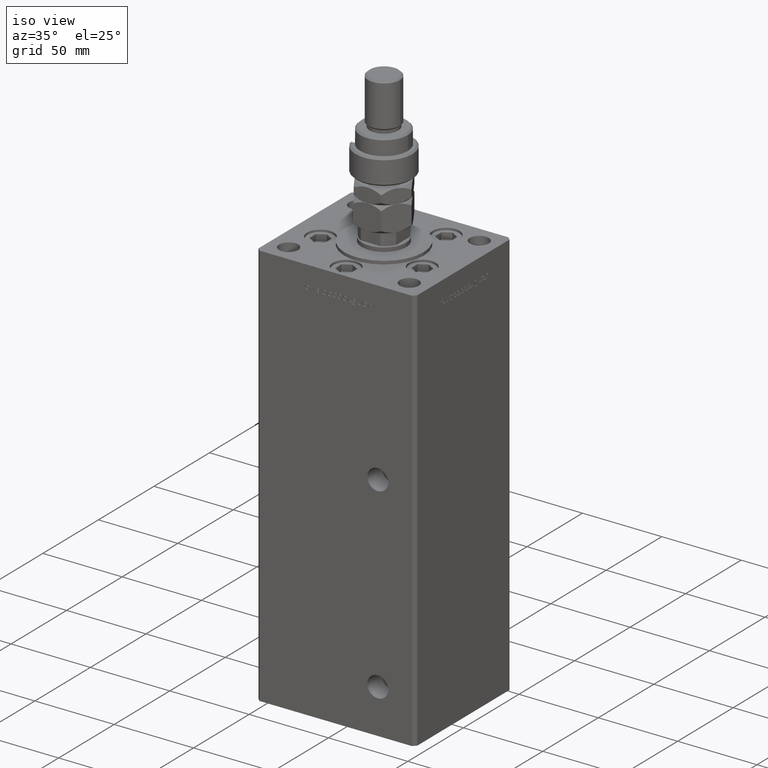
[diagram: clean part render]
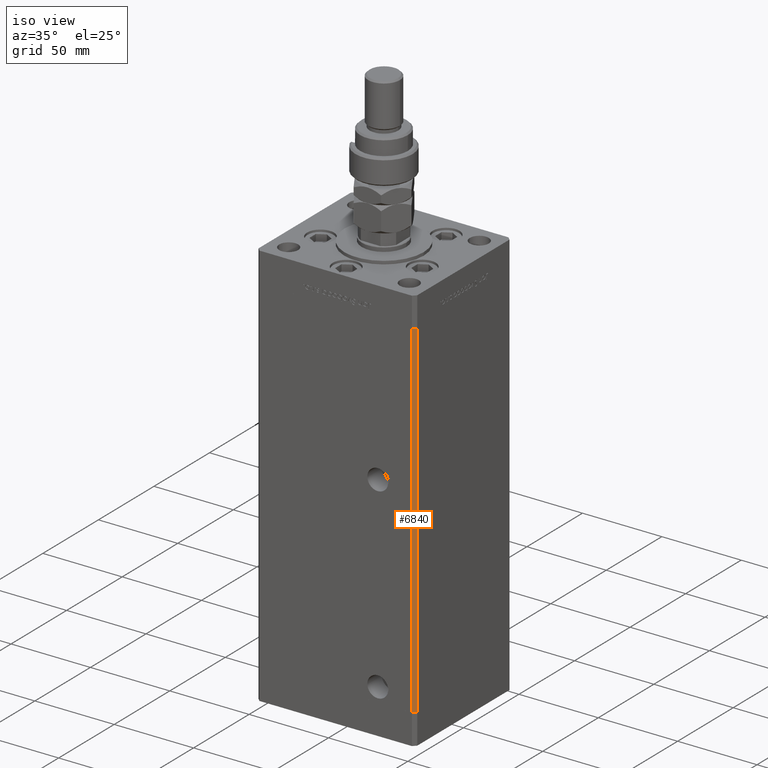
[diagram: same view with one face highlighted and labeled with its STEP entity id]
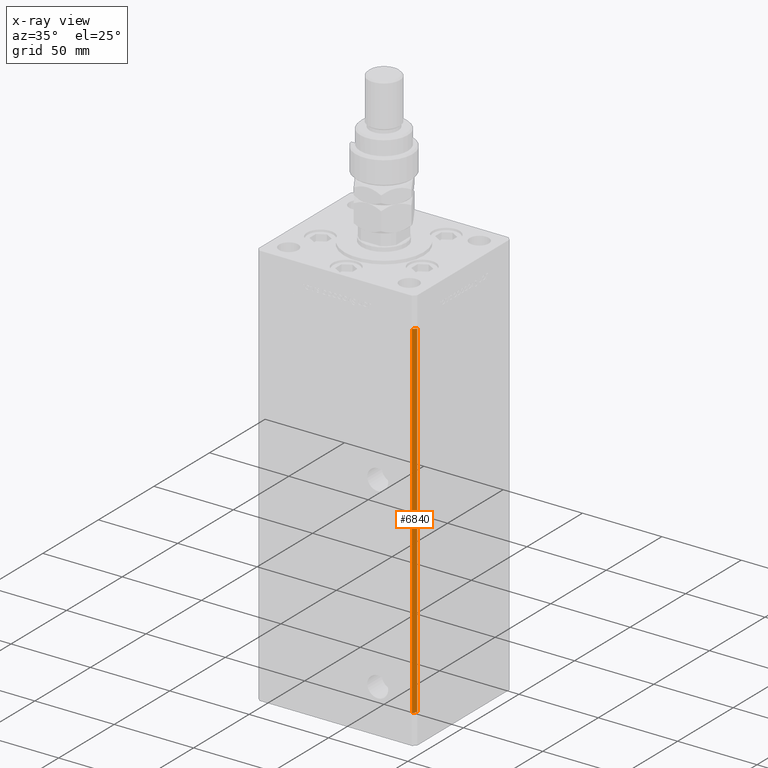
[diagram: x-ray of the same camera — body ghosted, the highlighted face saturated]
A machine part, iso view. The second image highlights one B-rep face of the part: STEP entity #6840.
The next image is the same camera in x-ray: the body ghosted, the highlighted face saturated — about 0% of this face is hidden behind the body in this view.
In plain terms, the highlighted planar face has unit normal (0.7071, -0.7071, 0).
Its self-contained STEP definition (entity closure, byte-faithful):
#705 = CARTESIAN_POINT ( 'NONE',  ( 47.99999999999998579, -43.50000000000000000, 218.5000000000000000 ) ) ;
#2319 = VECTOR ( 'NONE', #32748, 1000.000000000000000 ) ;
#2822 = VERTEX_POINT ( 'NONE', #11206 ) ;
#6190 = CARTESIAN_POINT ( 'NONE',  ( 47.99999999999998579, -43.50000000000000000, 218.5000000000000000 ) ) ;
#6840 = ADVANCED_FACE ( 'NONE', ( #42154 ), #46057, .T. ) ;
#8499 = DIRECTION ( 'NONE',  ( 0.7071067811865474617, 0.7071067811865474617, 0.000000000000000000 ) ) ;
#11206 = CARTESIAN_POINT ( 'NONE',  ( 49.99999999999998579, -41.49999999999999289, 0.000000000000000000 ) ) ;
#11224 = LINE ( 'NONE', #45161, #23388 ) ;
#11760 = VECTOR ( 'NONE', #14849, 1000.000000000000000 ) ;
#13033 = VERTEX_POINT ( 'NONE', #6190 ) ;
#14849 = DIRECTION ( 'NONE',  ( -0.000000000000000000, -0.000000000000000000, -1.000000000000000000 ) ) ;
#15159 = EDGE_LOOP ( 'NONE', ( #40684, #20014, #39445, #27961 ) ) ;
#20014 = ORIENTED_EDGE ( 'NONE', *, *, #42203, .F. ) ;
#20901 = LINE ( 'NONE', #54830, #29377 ) ;
#21585 = DIRECTION ( 'NONE',  ( 0.7071067811865475727, -0.7071067811865475727, 0.000000000000000000 ) ) ;
#23164 = EDGE_CURVE ( 'NONE', #2822, #36286, #20901, .T. ) ;
#23388 = VECTOR ( 'NONE', #54329, 1000.000000000000114 ) ;
#27961 = ORIENTED_EDGE ( 'NONE', *, *, #29288, .T. ) ;
#28671 = DIRECTION ( 'NONE',  ( -0.7071067811865474617, -0.7071067811865474617, 0.000000000000000000 ) ) ;
#29288 = EDGE_CURVE ( 'NONE', #13033, #36286, #38826, .T. ) ;
#29377 = VECTOR ( 'NONE', #28671, 1000.000000000000114 ) ;
#29462 = EDGE_CURVE ( 'NONE', #37796, #13033, #11224, .T. ) ;
#32748 = DIRECTION ( 'NONE',  ( -0.000000000000000000, -0.000000000000000000, -1.000000000000000000 ) ) ;
#33300 = CARTESIAN_POINT ( 'NONE',  ( 49.99999999999998579, -41.49999999999999289, 218.5000000000000000 ) ) ;
#35797 = CARTESIAN_POINT ( 'NONE',  ( 49.99999999999998579, -41.49999999999999289, 218.5000000000000000 ) ) ;
#36286 = VERTEX_POINT ( 'NONE', #40366 ) ;
#37796 = VERTEX_POINT ( 'NONE', #35797 ) ;
#38805 = LINE ( 'NONE', #33300, #2319 ) ;
#38826 = LINE ( 'NONE', #705, #11760 ) ;
#39445 = ORIENTED_EDGE ( 'NONE', *, *, #29462, .T. ) ;
#40366 = CARTESIAN_POINT ( 'NONE',  ( 47.99999999999998579, -43.50000000000000000, 0.000000000000000000 ) ) ;
#40684 = ORIENTED_EDGE ( 'NONE', *, *, #23164, .F. ) ;
#41059 = AXIS2_PLACEMENT_3D ( 'NONE', #46615, #21585, #8499 ) ;
#42154 = FACE_OUTER_BOUND ( 'NONE', #15159, .T. ) ;
#42203 = EDGE_CURVE ( 'NONE', #37796, #2822, #38805, .T. ) ;
#45161 = CARTESIAN_POINT ( 'NONE',  ( 49.99999999999998579, -41.49999999999999289, 218.5000000000000000 ) ) ;
#46057 = PLANE ( 'NONE',  #41059 ) ;
#46615 = CARTESIAN_POINT ( 'NONE',  ( 49.99999999999998579, -41.49999999999999289, 218.5000000000000000 ) ) ;
#54329 = DIRECTION ( 'NONE',  ( -0.7071067811865474617, -0.7071067811865474617, 0.000000000000000000 ) ) ;
#54830 = CARTESIAN_POINT ( 'NONE',  ( 49.99999999999998579, -41.49999999999999289, 0.000000000000000000 ) ) ;